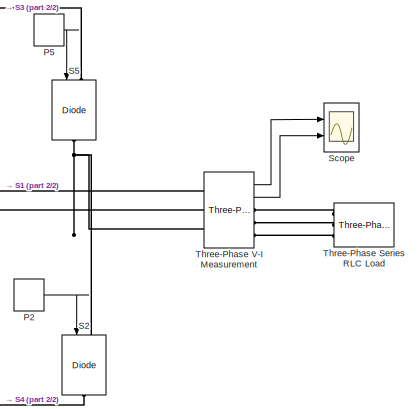
[diagram: root canvas - part 1/2, right side, full height]
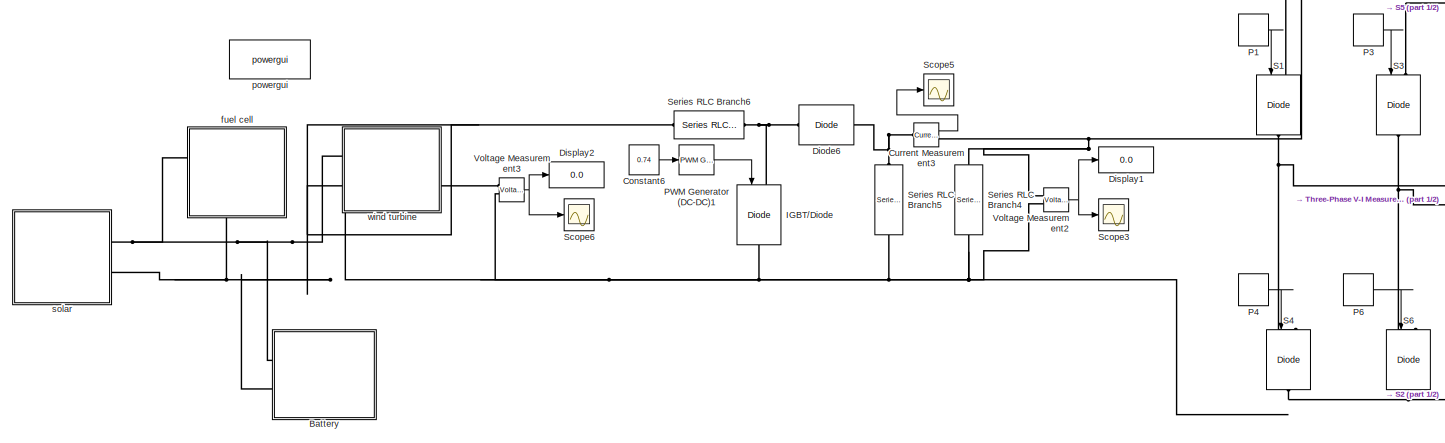
[diagram: root canvas - part 2/2, most of the canvas]
MODEL slx_8d713b7d7baa
KIND model
CONFIG AbsTol = auto
CONFIG EnableMultiTasking = off
CONFIG FixedStep = auto
CONFIG MaxStep = auto
CONFIG MinStep = auto
CONFIG RelTol = 1e-3
CONFIG SampleTimeConstraint = Unconstrained
CONFIG Solver = VariableStepAuto
CONFIG SolverName = VariableStepAuto
CONFIG StartTime = 0.0
CONFIG StopTime = 10.0
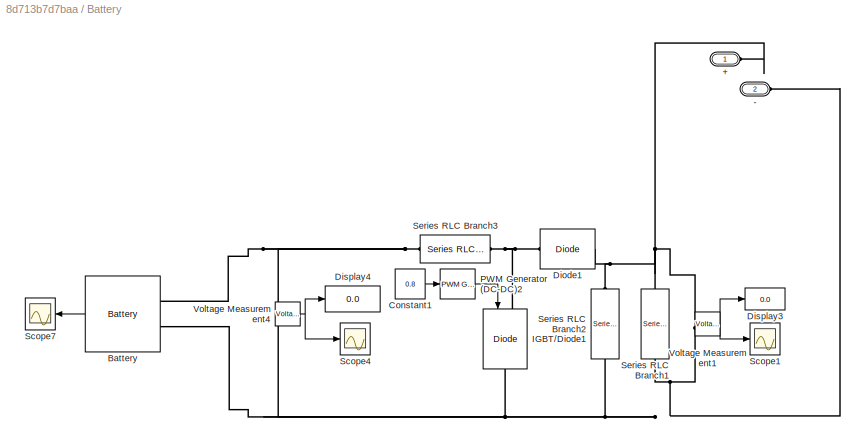
BLOCK [SubSystem] Battery
  Ports = [0, 0, 0, 0, 0, 2]
  RequestExecContextInheritance = off
BLOCK [PMIOPort] Battery/+
  Side = Left
BLOCK [PMIOPort] Battery/-
  Port = 2
  Side = Left
BLOCK [Reference] Battery/Battery  REF=electricdrivelib/Extra Sources/Battery
  Ports = [0, 1, 0, 0, 0, 2]
  SourceBlock = electricdrivelib/Extra Sources/Battery
  SourceProductBaseCode = PS
  SourceType = Battery
BLOCK [Constant] Battery/Constant1
  Value = 0.8
BLOCK [Reference] Battery/Diode1  REF=powerlib/Power
Electronics/Diode
  Ports = [0, 0, 0, 0, 0, 1, 1]
  SourceBlock = powerlib/Power\nElectronics/Diode
  SourceProductBaseCode = PS
  SourceType = Diode
BLOCK [Display] Battery/Display3
  Decimation = 1
  Ports = [1]
BLOCK [Display] Battery/Display4
  Decimation = 1
  Ports = [1]
BLOCK [Reference] Battery/IGBT//Diode1  REF=powerlib/Power
Electronics/IGBT//Diode
  NameLocation = left
  Ports = [1, 0, 0, 0, 0, 1, 1]
  SourceBlock = powerlib/Power\nElectronics/IGBT//Diode
  SourceProductBaseCode = PS
  SourceType = IGBT/Diode
BLOCK [Reference] Battery/PWM Generator (DC-DC)2  REF=powerlib_meascontrol/Pulse & Signal
Generators/PWM Generator
(DC-DC)
  Ports = [1, 1]
  SourceBlock = powerlib_meascontrol/Pulse & Signal\nGenerators/PWM Generator\n(DC-DC)
  SourceProductBaseCode = PS
  SourceType = PWM Generator (DC-DC)
BLOCK [Scope] Battery/Scope1
  Floating = off
  NumInputPorts = 1
  Ports = [1]
  ScopeSpecificationString = Simulink.scopes.TimeScopeBlockCfg('CurrentConfiguration', extmgr.ConfigurationSet(extmgr.Configuration('Core','General UI',true),extmgr.Configuration('Core','Source UI',true),extmgr.Configuration('Sources','WiredSimulink',true,'DataLoggingVariableName','ScopeData1','DataLoggingSaveFormat','StructureWithTime','DataLoggingDecimation','1','DataLoggingDecimateData',true),extmgr.Configuration('Visuals'...<+1711ch>
BLOCK [Scope] Battery/Scope4
  Floating = off
  NumInputPorts = 1
  Ports = [1]
  ScopeSpecificationString = Simulink.scopes.TimeScopeBlockCfg('CurrentConfiguration', extmgr.ConfigurationSet(extmgr.Configuration('Core','General UI',true),extmgr.Configuration('Core','Source UI',true),extmgr.Configuration('Sources','WiredSimulink',true,'DataLoggingVariableName','ScopeData3','DataLoggingSaveFormat','StructureWithTime','DataLoggingDecimation','1','DataLoggingDecimateData',true),extmgr.Configuration('Visuals'...<+1707ch>
BLOCK [Scope] Battery/Scope7
  Floating = off
  NumInputPorts = 1
  Ports = [1]
  ScopeSpecificationString = Simulink.scopes.TimeScopeBlockCfg('CurrentConfiguration', extmgr.ConfigurationSet(extmgr.Configuration('Core','General UI',true),extmgr.Configuration('Core','Source UI',true),extmgr.Configuration('Sources','WiredSimulink',true,'DataLoggingVariableName','ScopeData4','DataLoggingSaveFormat','StructureWithTime','DataLoggingDecimation','1','DataLoggingDecimateData',true),extmgr.Configuration('Visuals'...<+1748ch>
BLOCK [Reference] Battery/Series RLC Branch1  REF=powerlib/Elements/Series RLC Branch
  NameLocation = left
  Ports = [0, 0, 0, 0, 0, 1, 1]
  SourceBlock = powerlib/Elements/Series RLC Branch
  SourceProductBaseCode = PS
  SourceType = Series RLC Branch
BLOCK [Reference] Battery/Series RLC Branch2  REF=powerlib/Elements/Series RLC Branch
  NameLocation = left
  Ports = [0, 0, 0, 0, 0, 1, 1]
  SourceBlock = powerlib/Elements/Series RLC Branch
  SourceProductBaseCode = PS
  SourceType = Series RLC Branch
BLOCK [Reference] Battery/Series RLC Branch3  REF=powerlib/Elements/Series RLC Branch
  NameLocation = top
  Ports = [0, 0, 0, 0, 0, 1, 1]
  SourceBlock = powerlib/Elements/Series RLC Branch
  SourceProductBaseCode = PS
  SourceType = Series RLC Branch
BLOCK [Reference] Battery/Voltage Measurement1  REF=powerlib/Measurements/Voltage Measurement
  Ports = [0, 1, 0, 0, 0, 2]
  SourceBlock = powerlib/Measurements/Voltage Measurement
  SourceProductBaseCode = PS
  SourceType = Voltage Measurement
BLOCK [Reference] Battery/Voltage Measurement4  REF=powerlib/Measurements/Voltage Measurement
  Ports = [0, 1, 0, 0, 0, 2]
  SourceBlock = powerlib/Measurements/Voltage Measurement
  SourceProductBaseCode = PS
  SourceType = Voltage Measurement
BLOCK [Constant] Constant6
  Value = 0.74
BLOCK [Reference] Current Measurement3  REF=powerlib/Measurements/Current Measurement
  Ports = [0, 1, 0, 0, 0, 1, 1]
  SourceBlock = powerlib/Measurements/Current Measurement
  SourceProductBaseCode = PS
  SourceType = Current Measurement
BLOCK [Reference] Diode6  REF=powerlib/Power
Electronics/Diode
  Ports = [0, 0, 0, 0, 0, 1, 1]
  SourceBlock = powerlib/Power\nElectronics/Diode
  SourceProductBaseCode = PS
  SourceType = Diode
BLOCK [Display] Display1
  Decimation = 1
  Ports = [1]
BLOCK [Display] Display2
  Decimation = 1
  Ports = [1]
BLOCK [Reference] IGBT//Diode  REF=powerlib/Power
Electronics/IGBT//Diode
  NameLocation = left
  Ports = [1, 0, 0, 0, 0, 1, 1]
  SourceBlock = powerlib/Power\nElectronics/IGBT//Diode
  SourceProductBaseCode = PS
  SourceType = IGBT/Diode
BLOCK [DiscretePulseGenerator] P1 
  Period = 0.02
  PhaseDelay = 0*0.02/360
  Ports = [0, 1]
  PulseType = Time based
  PulseWidth = 50
BLOCK [DiscretePulseGenerator] P2
  Period = 0.02
  PhaseDelay = 60*0.02/360
  Ports = [0, 1]
  PulseType = Time based
  PulseWidth = 50
BLOCK [DiscretePulseGenerator] P3
  Period = 0.02
  PhaseDelay = 120*0.02/360
  Ports = [0, 1]
  PulseType = Time based
  PulseWidth = 50
BLOCK [DiscretePulseGenerator] P4
  Period = 0.02
  PhaseDelay = 180*0.02/360
  Ports = [0, 1]
  PulseType = Time based
  PulseWidth = 50
BLOCK [DiscretePulseGenerator] P5
  Period = 0.02
  PhaseDelay = 240*0.02/360
  Ports = [0, 1]
  PulseType = Time based
  PulseWidth = 50
BLOCK [DiscretePulseGenerator] P6
  Period = 0.02
  PhaseDelay = 300*0.02/360
  Ports = [0, 1]
  PulseType = Time based
  PulseWidth = 50
BLOCK [Reference] PWM Generator (DC-DC)1  REF=powerlib_meascontrol/Pulse & Signal
Generators/PWM Generator
(DC-DC)
  Ports = [1, 1]
  SourceBlock = powerlib_meascontrol/Pulse & Signal\nGenerators/PWM Generator\n(DC-DC)
  SourceProductBaseCode = PS
  SourceType = PWM Generator (DC-DC)
BLOCK [Reference] S1  REF=powerlib/Power
Electronics/IGBT//Diode
  NameLocation = left
  Ports = [1, 0, 0, 0, 0, 1, 1]
  SourceBlock = powerlib/Power\nElectronics/IGBT//Diode
  SourceProductBaseCode = PS
  SourceType = IGBT/Diode
BLOCK [Reference] S2  REF=powerlib/Power
Electronics/IGBT//Diode
  NameLocation = left
  Ports = [1, 0, 0, 0, 0, 1, 1]
  SourceBlock = powerlib/Power\nElectronics/IGBT//Diode
  SourceProductBaseCode = PS
  SourceType = IGBT/Diode
BLOCK [Reference] S3  REF=powerlib/Power
Electronics/IGBT//Diode
  NameLocation = left
  Ports = [1, 0, 0, 0, 0, 1, 1]
  SourceBlock = powerlib/Power\nElectronics/IGBT//Diode
  SourceProductBaseCode = PS
  SourceType = IGBT/Diode
BLOCK [Reference] S4  REF=powerlib/Power
Electronics/IGBT//Diode
  NameLocation = left
  Ports = [1, 0, 0, 0, 0, 1, 1]
  SourceBlock = powerlib/Power\nElectronics/IGBT//Diode
  SourceProductBaseCode = PS
  SourceType = IGBT/Diode
BLOCK [Reference] S5  REF=powerlib/Power
Electronics/IGBT//Diode
  NameLocation = left
  Ports = [1, 0, 0, 0, 0, 1, 1]
  SourceBlock = powerlib/Power\nElectronics/IGBT//Diode
  SourceProductBaseCode = PS
  SourceType = IGBT/Diode
BLOCK [Reference] S6  REF=powerlib/Power
Electronics/IGBT//Diode
  NameLocation = left
  Ports = [1, 0, 0, 0, 0, 1, 1]
  SourceBlock = powerlib/Power\nElectronics/IGBT//Diode
  SourceProductBaseCode = PS
  SourceType = IGBT/Diode
BLOCK [Scope] Scope
  Floating = off
  NumInputPorts = 2
  Ports = [2]
  ScopeSpecificationString = Simulink.scopes.TimeScopeBlockCfg('CurrentConfiguration', extmgr.ConfigurationSet(extmgr.Configuration('Core','General UI',true),extmgr.Configuration('Core','Source UI',true),extmgr.Configuration('Sources','WiredSimulink',true,'DataLoggingVariableName','ScopeData2'),extmgr.Configuration('Visuals','Time Domain',true,'SerializedDisplays',{struct('MinYLimReal','85.97154','MaxYLimReal','154.36142','YL...<+2374ch>
BLOCK [Scope] Scope3
  Floating = off
  NumInputPorts = 1
  Ports = [1]
  ScopeSpecificationString = Simulink.scopes.TimeScopeBlockCfg('CurrentConfiguration', extmgr.ConfigurationSet(extmgr.Configuration('Core','General UI',true),extmgr.Configuration('Core','Source UI',true),extmgr.Configuration('Sources','WiredSimulink',true,'DataLoggingVariableName','ScopeData4','DataLoggingSaveFormat','StructureWithTime','DataLoggingDecimation','1','DataLoggingDecimateData',true),extmgr.Configuration('Visuals'...<+1727ch>
BLOCK [Scope] Scope5
  Floating = off
  NumInputPorts = 1
  Ports = [1]
  ScopeSpecificationString = Simulink.scopes.TimeScopeBlockCfg('CurrentConfiguration', extmgr.ConfigurationSet(extmgr.Configuration('Core','General UI',true),extmgr.Configuration('Core','Source UI',true),extmgr.Configuration('Sources','WiredSimulink',true,'DataLoggingVariableName','ScopeData1','DataLoggingSaveFormat','StructureWithTime','DataLoggingDecimation','1','DataLoggingDecimateData',true),extmgr.Configuration('Visuals'...<+1611ch>
BLOCK [Scope] Scope6
  Floating = off
  NumInputPorts = 1
  Ports = [1]
  ScopeSpecificationString = Simulink.scopes.TimeScopeBlockCfg('CurrentConfiguration', extmgr.ConfigurationSet(extmgr.Configuration('Core','General UI',true),extmgr.Configuration('Core','Source UI',true),extmgr.Configuration('Sources','WiredSimulink',true,'DataLoggingVariableName','ScopeData6','DataLoggingSaveFormat','StructureWithTime','DataLoggingDecimation','1','DataLoggingDecimateData',true),extmgr.Configuration('Visuals'...<+1707ch>
BLOCK [Reference] Series RLC Branch4  REF=powerlib/Elements/Series RLC Branch
  NameLocation = left
  Ports = [0, 0, 0, 0, 0, 1, 1]
  SourceBlock = powerlib/Elements/Series RLC Branch
  SourceProductBaseCode = PS
  SourceType = Series RLC Branch
BLOCK [Reference] Series RLC Branch5  REF=powerlib/Elements/Series RLC Branch
  NameLocation = left
  Ports = [0, 0, 0, 0, 0, 1, 1]
  SourceBlock = powerlib/Elements/Series RLC Branch
  SourceProductBaseCode = PS
  SourceType = Series RLC Branch
BLOCK [Reference] Series RLC Branch6  REF=powerlib/Elements/Series RLC Branch
  NameLocation = top
  Ports = [0, 0, 0, 0, 0, 1, 1]
  SourceBlock = powerlib/Elements/Series RLC Branch
  SourceProductBaseCode = PS
  SourceType = Series RLC Branch
BLOCK [Reference] Three-Phase Series RLC Load  REF=powerlib/Elements/Three-Phase
Series RLC Load
  AttributesFormatString = \n
  NameLocation = top
  Ports = [0, 0, 0, 0, 0, 3]
  SourceBlock = powerlib/Elements/Three-Phase\nSeries RLC Load
  SourceProductBaseCode = PS
  SourceType = Three-Phase Series RLC Load
BLOCK [Reference] Three-Phase V-I Measurement  REF=powerlib/Measurements/Three-Phase
V-I Measurement
  Ports = [0, 2, 0, 0, 0, 3, 3]
  SourceBlock = powerlib/Measurements/Three-Phase\nV-I Measurement
  SourceProductBaseCode = PS
  SourceType = Three-Phase VI Measurement
BLOCK [Reference] Voltage Measurement2  REF=powerlib/Measurements/Voltage Measurement
  Ports = [0, 1, 0, 0, 0, 2]
  SourceBlock = powerlib/Measurements/Voltage Measurement
  SourceProductBaseCode = PS
  SourceType = Voltage Measurement
BLOCK [Reference] Voltage Measurement3  REF=powerlib/Measurements/Voltage Measurement
  Ports = [0, 1, 0, 0, 0, 2]
  SourceBlock = powerlib/Measurements/Voltage Measurement
  SourceProductBaseCode = PS
  SourceType = Voltage Measurement
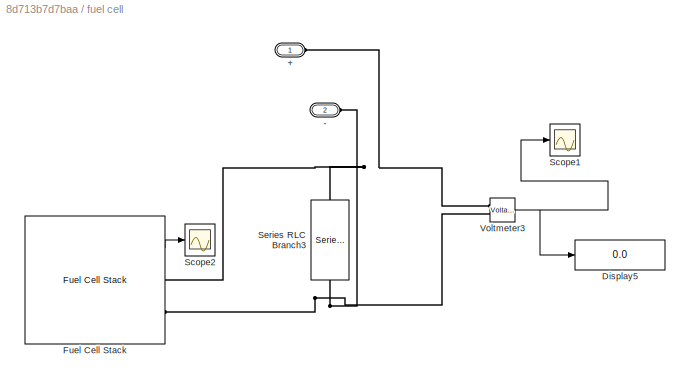
BLOCK [SubSystem] fuel cell
  Ports = [0, 0, 0, 0, 0, 2]
  RequestExecContextInheritance = off
BLOCK [PMIOPort] fuel cell/+
  Side = Left
BLOCK [PMIOPort] fuel cell/-
  Port = 2
  Side = Left
BLOCK [Display] fuel cell/Display5
  Decimation = 1
  Ports = [1]
BLOCK [Reference] fuel cell/Fuel Cell Stack  REF=electricdrivelib/Extra Sources/Fuel Cell Stack
  Ports = [0, 1, 0, 0, 0, 0, 2]
  SourceBlock = electricdrivelib/Extra Sources/Fuel Cell Stack
  SourceProductBaseCode = PS
  SourceType = Fuel Cell Stack
BLOCK [Scope] fuel cell/Scope1
  Floating = off
  NumInputPorts = 1
  Ports = [1]
  ScopeSpecificationString = Simulink.scopes.TimeScopeBlockCfg('CurrentConfiguration', extmgr.ConfigurationSet(extmgr.Configuration('Core','General UI',true),extmgr.Configuration('Core','Source UI',true),extmgr.Configuration('Sources','WiredSimulink',true,'DataLoggingVariableName','ScopeData1','DataLoggingSaveFormat','StructureWithTime','DataLoggingDecimation','1','DataLoggingDecimateData',true),extmgr.Configuration('Visuals'...<+1752ch>
BLOCK [Scope] fuel cell/Scope2
  Floating = off
  NumInputPorts = 1
  Ports = [1]
  ScopeSpecificationString = Simulink.scopes.TimeScopeBlockCfg('CurrentConfiguration', extmgr.ConfigurationSet(extmgr.Configuration('Core','General UI',true),extmgr.Configuration('Core','Source UI',true),extmgr.Configuration('Sources','WiredSimulink',true,'DataLoggingVariableName','ScopeData2','DataLoggingSaveFormat','StructureWithTime','DataLoggingDecimation','1','DataLoggingDecimateData',true),extmgr.Configuration('Visuals'...<+2560ch>
BLOCK [Reference] fuel cell/Series RLC Branch3  REF=powerlib/Elements/Series RLC Branch
  NameLocation = left
  Ports = [0, 0, 0, 0, 0, 1, 1]
  SourceBlock = powerlib/Elements/Series RLC Branch
  SourceProductBaseCode = PS
  SourceType = Series RLC Branch
BLOCK [Reference] fuel cell/Voltmeter3  REF=powerlib/Measurements/Voltage Measurement
  Ports = [0, 1, 0, 0, 0, 2]
  SourceBlock = powerlib/Measurements/Voltage Measurement
  SourceProductBaseCode = PS
  SourceType = Voltage Measurement
BLOCK [Reference] powergui  REF=powerlib/powergui
  Ports = []
  Priority = 1
  SourceBlock = powerlib/powergui
  SourceProductBaseCode = PS
  SourceType = PSB option menu block
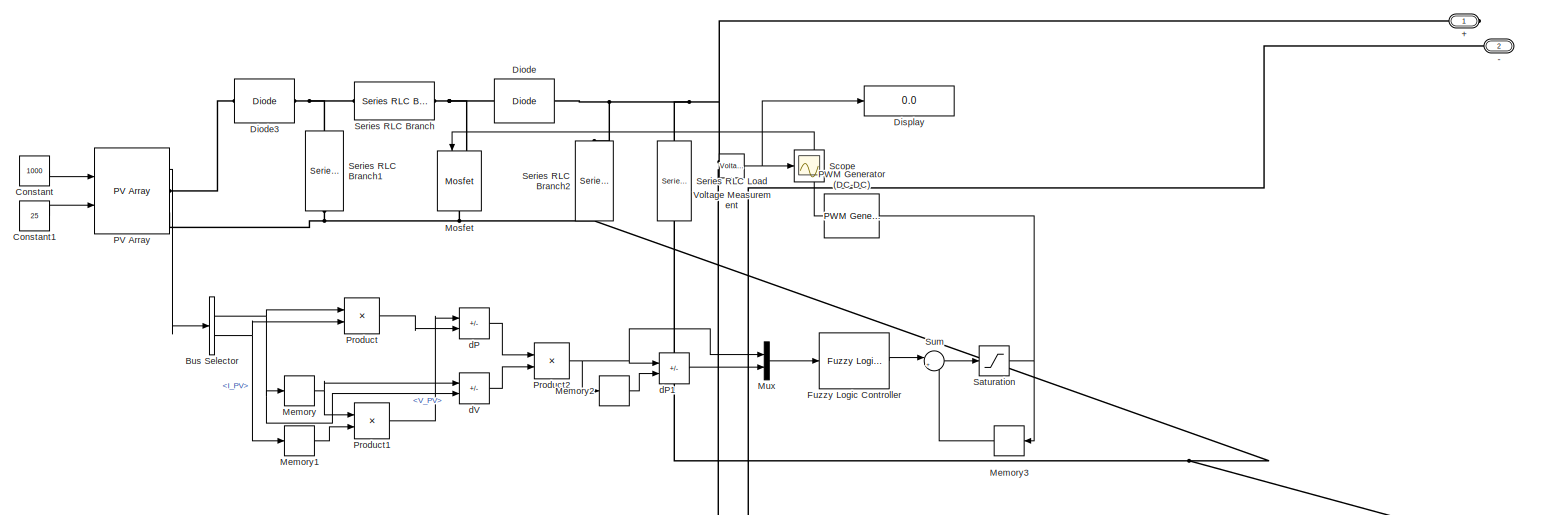
[diagram: solar - part 1/1, full width, middle band]
BLOCK [SubSystem] solar
  Ports = [0, 0, 0, 0, 0, 0, 2]
  RequestExecContextInheritance = off
BLOCK [PMIOPort] solar/+
  Side = Right
BLOCK [PMIOPort] solar/-
  Port = 2
  Side = Right
BLOCK [BusSelector] solar/Bus Selector
  OutputSignals = V_PV,I_PV
  Ports = [1, 2]
BLOCK [Constant] solar/Constant
  Value = 1000
BLOCK [Constant] solar/Constant1
  Value = 25
BLOCK [Reference] solar/Diode  REF=powerlib/Power
Electronics/Diode
  Ports = [0, 0, 0, 0, 0, 1, 1]
  SourceBlock = powerlib/Power\nElectronics/Diode
  SourceProductBaseCode = PS
  SourceType = Diode
BLOCK [Reference] solar/Diode3  REF=powerlib/Power
Electronics/Diode
  Ports = [0, 0, 0, 0, 0, 1, 1]
  SourceBlock = powerlib/Power\nElectronics/Diode
  SourceProductBaseCode = PS
  SourceType = Diode
BLOCK [Display] solar/Display
  Decimation = 1
  Ports = [1]
BLOCK [Reference] solar/Fuzzy Logic Controller  REF=fuzblock/Fuzzy Logic   (lib defined in mdl_858b3b3e7478)
Controller
  Ports = [1, 1]
  SourceBlock = fuzblock/Fuzzy Logic \nController
  SourceProductBaseCode = FL
  SourceType = Fuzzy Inference System
BLOCK [Memory] solar/Memory
BLOCK [Memory] solar/Memory1
BLOCK [Memory] solar/Memory2
BLOCK [Memory] solar/Memory3
  NameLocation = top
BLOCK [Reference] solar/Mosfet  REF=powerlib/Power
Electronics/Mosfet
  NameLocation = left
  Ports = [1, 0, 0, 0, 0, 1, 1]
  SourceBlock = powerlib/Power\nElectronics/Mosfet
  SourceProductBaseCode = PS
  SourceType = Mosfet
BLOCK [Mux] solar/Mux
  DisplayOption = bar
  Inputs = 2
  Ports = [2, 1]
BLOCK [Reference] solar/PV Array  REF=re_lib/Solar/PV Array
  Ports = [2, 1, 0, 0, 0, 0, 2]
  SourceBlock = re_lib/Solar/PV Array
  SourceProductBaseCode = PS
  SourceType = PV array
BLOCK [Reference] solar/PWM Generator (DC-DC)  REF=powerlib_meascontrol/Pulse & Signal
Generators/PWM Generator
(DC-DC)
  NameLocation = top
  Ports = [1, 1]
  SourceBlock = powerlib_meascontrol/Pulse & Signal\nGenerators/PWM Generator\n(DC-DC)
  SourceProductBaseCode = PS
  SourceType = PWM Generator (DC-DC)
BLOCK [Product] solar/Product
  Ports = [2, 1]
BLOCK [Product] solar/Product1
  Ports = [2, 1]
BLOCK [Product] solar/Product2
  Inputs = /*
  Ports = [2, 1]
BLOCK [Saturate] solar/Saturation
BLOCK [Scope] solar/Scope
  Floating = off
  NumInputPorts = 1
  Ports = [1]
  ScopeSpecificationString = Simulink.scopes.TimeScopeBlockCfg('CurrentConfiguration', extmgr.ConfigurationSet(extmgr.Configuration('Core','General UI',true,'FigureColor',[1 1 1]),extmgr.Configuration('Core','Source UI',true),extmgr.Configuration('Sources','WiredSimulink',true),extmgr.Configuration('Visuals','Time Domain',true,'SerializedDisplays',{struct('MinYLimReal','-11.21867','MaxYLimReal','100.9692','YLabelReal','','Min...<+1630ch>
BLOCK [Reference] solar/Series RLC Branch  REF=powerlib/Elements/Series RLC Branch
  Ports = [0, 0, 0, 0, 0, 1, 1]
  SourceBlock = powerlib/Elements/Series RLC Branch
  SourceProductBaseCode = PS
  SourceType = Series RLC Branch
BLOCK [Reference] solar/Series RLC Branch1  REF=powerlib/Elements/Series RLC Branch
  NameLocation = left
  Ports = [0, 0, 0, 0, 0, 1, 1]
  SourceBlock = powerlib/Elements/Series RLC Branch
  SourceProductBaseCode = PS
  SourceType = Series RLC Branch
BLOCK [Reference] solar/Series RLC Branch2  REF=powerlib/Elements/Series RLC Branch
  NameLocation = left
  Ports = [0, 0, 0, 0, 0, 1, 1]
  SourceBlock = powerlib/Elements/Series RLC Branch
  SourceProductBaseCode = PS
  SourceType = Series RLC Branch
BLOCK [Reference] solar/Series RLC Load  REF=powerlib/Elements/Series RLC Load
  AttributesFormatString = \n
  NameLocation = left
  Ports = [0, 0, 0, 0, 0, 1, 1]
  SourceBlock = powerlib/Elements/Series RLC Load
  SourceProductBaseCode = PS
  SourceType = Series RLC Load
BLOCK [Sum] solar/Sum
  Inputs = |++
  Ports = [2, 1]
BLOCK [Reference] solar/Voltage Measurement  REF=powerlib/Measurements/Voltage Measurement
  Ports = [0, 1, 0, 0, 0, 2]
  SourceBlock = powerlib/Measurements/Voltage Measurement
  SourceProductBaseCode = PS
  SourceType = Voltage Measurement
  UserDataPersistent = on
BLOCK [Sum] solar/dP
  IconShape = rectangular
  Inputs = +-
  Ports = [2, 1]
BLOCK [Sum] solar/dP1
  IconShape = rectangular
  Inputs = +-
  Ports = [2, 1]
BLOCK [Sum] solar/dV
  IconShape = rectangular
  Inputs = +-
  Ports = [2, 1]
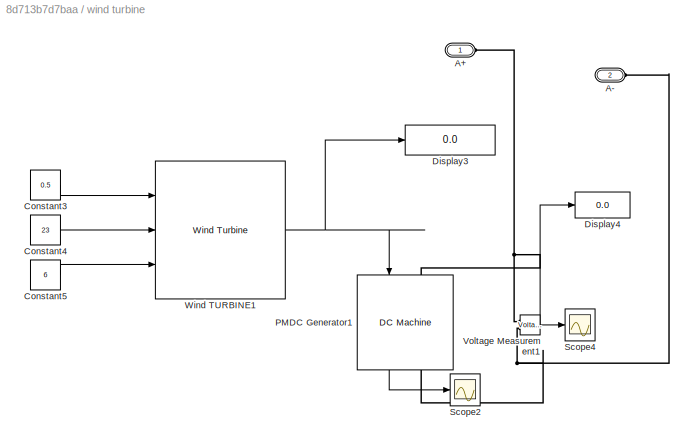
BLOCK [SubSystem] wind turbine
  Ports = [0, 0, 0, 0, 0, 2]
  RequestExecContextInheritance = off
BLOCK [PMIOPort] wind turbine/A+
  Side = Left
BLOCK [PMIOPort] wind turbine/A-
  Port = 2
  Side = Left
BLOCK [Constant] wind turbine/Constant3
  Value = 0.5
BLOCK [Constant] wind turbine/Constant4
  Value = 23
BLOCK [Constant] wind turbine/Constant5
  Value = 6
BLOCK [Display] wind turbine/Display3
  Decimation = 1
  Ports = [1]
BLOCK [Display] wind turbine/Display4
  Decimation = 1
  Ports = [1]
BLOCK [Reference] wind turbine/PMDC Generator1  REF=powerlib/Machines/DC Machine
  NameLocation = left
  Ports = [1, 1, 0, 0, 0, 1, 1]
  SourceBlock = powerlib/Machines/DC Machine
  SourceProductBaseCode = PS
  SourceType = DC machine
BLOCK [Scope] wind turbine/Scope2
  Floating = off
  NumInputPorts = 1
  Ports = [1]
  ScopeSpecificationString = Simulink.scopes.TimeScopeBlockCfg('CurrentConfiguration', extmgr.ConfigurationSet(extmgr.Configuration('Core','General UI',true),extmgr.Configuration('Core','Source UI',true),extmgr.Configuration('Sources','WiredSimulink',true,'DataLoggingVariableName','ScopeData2'),extmgr.Configuration('Visuals','Time Domain',true,'SerializedDisplays',{struct('MinYLimReal','-4.09461','MaxYLimReal','2.53659','YLab...<+1538ch>
BLOCK [Scope] wind turbine/Scope4
  Floating = off
  NumInputPorts = 1
  Ports = [1]
  ScopeSpecificationString = Simulink.scopes.TimeScopeBlockCfg('CurrentConfiguration', extmgr.ConfigurationSet(extmgr.Configuration('Core','General UI',true),extmgr.Configuration('Core','Source UI',true),extmgr.Configuration('Sources','WiredSimulink',true,'DataLoggingVariableName','ScopeData3','DataLoggingSaveFormat','StructureWithTime','DataLoggingDecimation','1','DataLoggingDecimateData',true),extmgr.Configuration('Visuals'...<+1614ch>
BLOCK [Reference] wind turbine/Voltage Measurement1  REF=powerlib/Measurements/Voltage Measurement
  Ports = [0, 1, 0, 0, 0, 2]
  SourceBlock = powerlib/Measurements/Voltage Measurement
  SourceProductBaseCode = PS
  SourceType = Voltage Measurement
BLOCK [Reference] wind turbine/Wind TURBINE1  REF=re_lib/Wind Generation/Wind Turbine
  Ports = [3, 1]
  SourceBlock = re_lib/Wind Generation/Wind Turbine
  SourceProductBaseCode = PS
  SourceType = Wind Turbine
LINE Battery/Battery:1 -> Battery/Scope7:1
LINE Battery/Constant1:1 -> Battery/PWM Generator (DC-DC)2:1
LINE Battery/PWM Generator (DC-DC)2:1 -> Battery/IGBT//Diode1:1
NET Battery/Voltage Measurement1:1 -> Battery/Display3:1, Battery/Scope1:1
NET Battery/Voltage Measurement4:1 -> Battery/Display4:1, Battery/Scope4:1
LINE Constant6:1 -> PWM Generator (DC-DC)1:1
LINE Current Measurement3:1 -> Scope5:1
LINE P1 :1 -> S1:1
LINE P2:1 -> S2:1
LINE P3:1 -> S3:1
LINE P4:1 -> S4:1
LINE P5:1 -> S5:1
LINE P6:1 -> S6:1
LINE PWM Generator (DC-DC)1:1 -> IGBT//Diode:1
LINE Three-Phase V-I Measurement:1 -> Scope:1
LINE Three-Phase V-I Measurement:2 -> Scope:2
NET Voltage Measurement2:1 -> Display1:1, Scope3:1
NET Voltage Measurement3:1 -> Display2:1, Scope6:1
LINE fuel cell/Fuel Cell Stack:1 -> fuel cell/Scope2:1
NET fuel cell/Voltmeter3:1 -> fuel cell/Display5:1, fuel cell/Scope1:1
NET solar/Bus Selector:1 -> solar/Memory:1, solar/Product:1, solar/dV:2
NET solar/Bus Selector:2 -> solar/Memory1:1, solar/Product:2
LINE solar/Constant1:1 -> solar/PV Array:2
LINE solar/Constant:1 -> solar/PV Array:1
LINE solar/Fuzzy Logic Controller:1 -> solar/Sum:1
LINE solar/Memory1:1 -> solar/Product1:2
LINE solar/Memory2:1 -> solar/dP1:2
LINE solar/Memory3:1 -> solar/Sum:2
NET solar/Memory:1 -> solar/Product1:1, solar/dV:1
LINE solar/Mux:1 -> solar/Fuzzy Logic Controller:1
LINE solar/PV Array:1 -> solar/Bus Selector:1
LINE solar/PWM Generator (DC-DC):1 -> solar/Mosfet:1
LINE solar/Product1:1 -> solar/dP:1
NET solar/Product2:1 -> solar/Memory2:1, solar/Mux:1, solar/dP1:1
LINE solar/Product:1 -> solar/dP:2
NET solar/Saturation:1 -> solar/Memory3:1, solar/PWM Generator (DC-DC):1
LINE solar/Sum:1 -> solar/Saturation:1
NET solar/Voltage Measurement:1 -> solar/Display:1, solar/Scope:1
LINE solar/dP1:1 -> solar/Mux:2
LINE solar/dP:1 -> solar/Product2:1
LINE solar/dV:1 -> solar/Product2:2
LINE wind turbine/Constant3:1 -> wind turbine/Wind TURBINE1:1
LINE wind turbine/Constant4:1 -> wind turbine/Wind TURBINE1:2
LINE wind turbine/Constant5:1 -> wind turbine/Wind TURBINE1:3
LINE wind turbine/PMDC Generator1:1 -> wind turbine/Scope2:1
NET wind turbine/Voltage Measurement1:1 -> wind turbine/Display4:1, wind turbine/Scope4:1
NET wind turbine/Wind TURBINE1:1 -> wind turbine/Display3:1, wind turbine/PMDC Generator1:1
PNET net1: Battery/+:RConn1 -- Battery/Diode1:RConn1 -- Battery/Series RLC Branch1:LConn1 -- Battery/Series RLC Branch2:LConn1 -- Battery/Voltage Measurement1:LConn1
PNET net2: Battery/-:RConn1 -- Battery/Battery:LConn2 -- Battery/IGBT//Diode1:RConn1 -- Battery/Series RLC Branch1:RConn1 -- Battery/Series RLC Branch2:RConn1 -- Battery/Voltage Measurement1:LConn2 -- Battery/Voltage Measurement4:LConn2
PNET net3: Battery/Battery:LConn1 -- Battery/Series RLC Branch3:LConn1 -- Battery/Voltage Measurement4:LConn1
PNET net4: Battery/Diode1:LConn1 -- Battery/IGBT//Diode1:LConn1 -- Battery/Series RLC Branch3:RConn1
PNET net5: Battery:LConn1 -- Series RLC Branch6:LConn1 -- Voltage Measurement3:LConn1 -- fuel cell:LConn1 -- solar:RConn1 -- wind turbine:LConn1
PNET net6: Battery:LConn2 -- IGBT//Diode:RConn1 -- S2:RConn1 -- S4:RConn1 -- S6:RConn1 -- Series RLC Branch4:RConn1 -- Series RLC Branch5:RConn1 -- Voltage Measurement2:LConn2 -- Voltage Measurement3:LConn2 -- fuel cell:LConn2 -- solar:RConn2 -- wind turbine:LConn2
PNET net7: Current Measurement3:LConn1 -- Diode6:RConn1 -- Series RLC Branch5:LConn1
PNET net8: Current Measurement3:RConn1 -- S1:LConn1 -- S3:LConn1 -- S5:LConn1 -- Series RLC Branch4:LConn1 -- Voltage Measurement2:LConn1
PNET net9: Diode6:LConn1 -- IGBT//Diode:LConn1 -- Series RLC Branch6:RConn1
PNET net10: S1:RConn1 -- S4:LConn1 -- Three-Phase V-I Measurement:LConn1
PNET net11: S2:LConn1 -- S5:RConn1 -- Three-Phase V-I Measurement:LConn3
PNET net12: S3:RConn1 -- S6:LConn1 -- Three-Phase V-I Measurement:LConn2
PLINE Three-Phase Series RLC Load:LConn1 -- Three-Phase V-I Measurement:RConn1
PLINE Three-Phase Series RLC Load:LConn2 -- Three-Phase V-I Measurement:RConn2
PLINE Three-Phase Series RLC Load:LConn3 -- Three-Phase V-I Measurement:RConn3
PNET net13: fuel cell/+:RConn1 -- fuel cell/Fuel Cell Stack:RConn1 -- fuel cell/Series RLC Branch3:LConn1 -- fuel cell/Voltmeter3:LConn1
PNET net14: fuel cell/-:RConn1 -- fuel cell/Fuel Cell Stack:RConn2 -- fuel cell/Series RLC Branch3:RConn1 -- fuel cell/Voltmeter3:LConn2
PNET net15: solar/+:RConn1 -- solar/Diode:RConn1 -- solar/Series RLC Branch2:LConn1 -- solar/Series RLC Load:LConn1 -- solar/Voltage Measurement:LConn1
PNET net16: solar/-:RConn1 -- solar/Mosfet:RConn1 -- solar/PV Array:RConn2 -- solar/Series RLC Branch1:RConn1 -- solar/Series RLC Branch2:RConn1 -- solar/Series RLC Load:RConn1 -- solar/Voltage Measurement:LConn2
PLINE solar/Diode3:LConn1 -- solar/PV Array:RConn1
PNET net17: solar/Diode3:RConn1 -- solar/Series RLC Branch1:LConn1 -- solar/Series RLC Branch:LConn1
PNET net18: solar/Diode:LConn1 -- solar/Mosfet:LConn1 -- solar/Series RLC Branch:RConn1
PNET net19: wind turbine/A+:RConn1 -- wind turbine/PMDC Generator1:LConn1 -- wind turbine/Voltage Measurement1:LConn1
PNET net20: wind turbine/A-:RConn1 -- wind turbine/PMDC Generator1:RConn1 -- wind turbine/Voltage Measurement1:LConn2
note: NET lines group one-source signal fan-out (src -> all destinations, sorted); 1:1 wires keep LINE; PNET lines group multi-terminal physical nets as a canonical sorted terminal list (undirected conserving connections); 2-terminal nets keep the pairwise PLINE form
